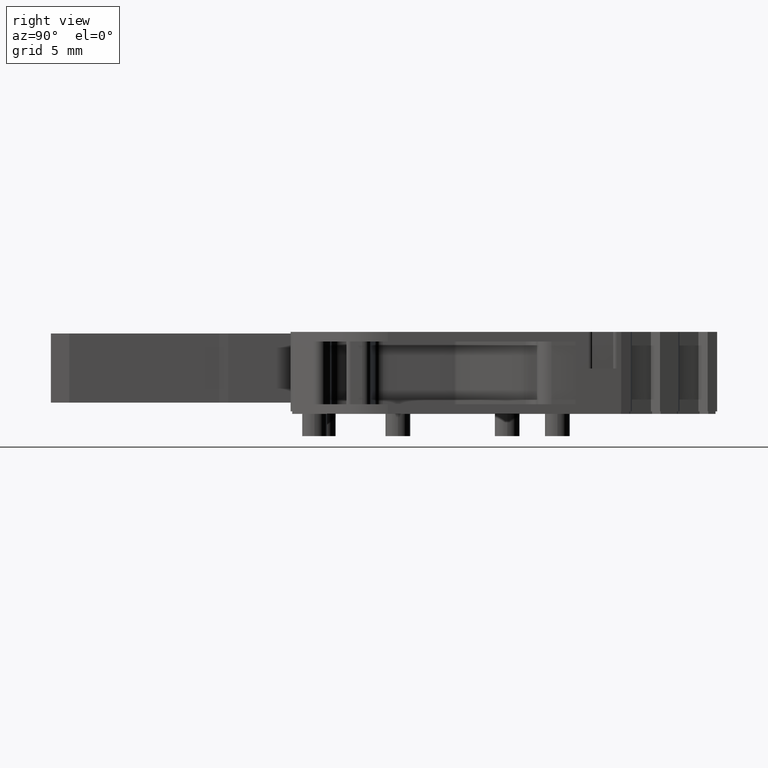
[diagram: clean part render]
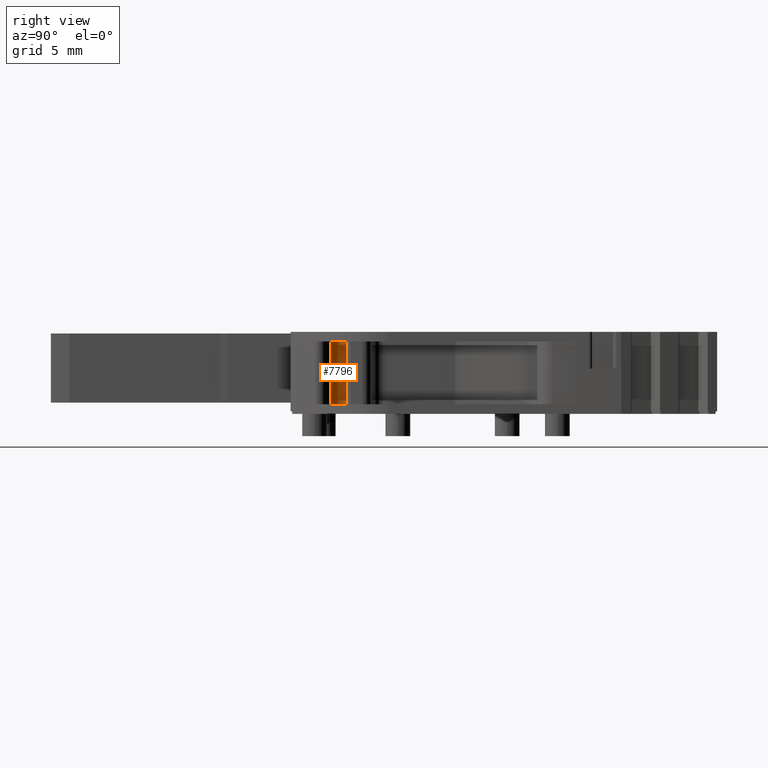
[diagram: same view with one face highlighted and labeled with its STEP entity id]
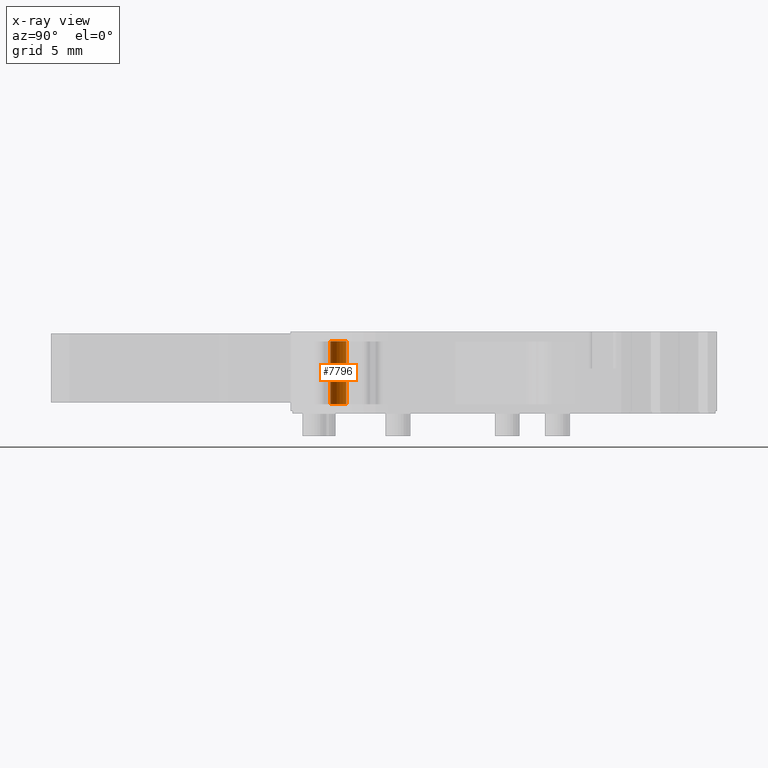
[diagram: x-ray of the same camera — body ghosted, the highlighted face saturated]
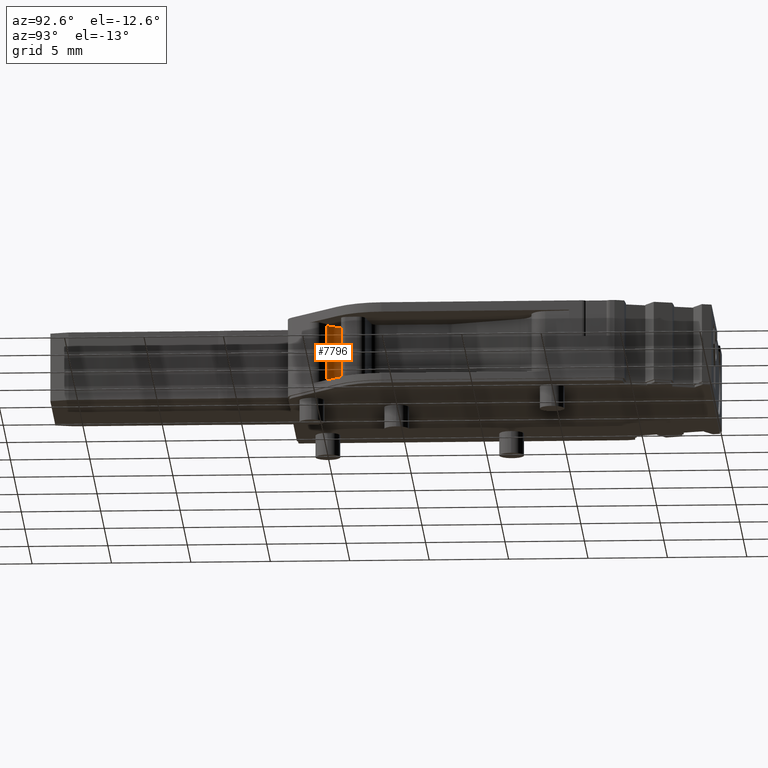
[diagram: same view with one face highlighted and labeled with its STEP entity id]
A machine part, right view. The second image highlights one B-rep face of the part: STEP entity #7796.
The next image is the same camera in x-ray: the body ghosted, the highlighted face saturated — about 0% of this face is hidden behind the body in this view.
A second angle (auxiliary view) of the same face is appended — the face is thin or edge-on in the first view.
In plain terms, the highlighted cylindrical surface (edge-blend (fillet) strip) has radius 1 mm, axis along (0, 0, -1).
Its self-contained STEP definition (entity closure, byte-faithful):
#3 = CIRCLE ( 'NONE', #54, 0.9999999999998689900 ) ;
#54 = AXIS2_PLACEMENT_3D ( 'NONE', #8955, #2813, #4175 ) ;
#198 = DIRECTION ( 'NONE',  ( 0.0000000000000000000, 0.0000000000000000000, -1.000000000000000000 ) ) ;
#207 = ORIENTED_EDGE ( 'NONE', *, *, #3768, .F. ) ;
#446 = DIRECTION ( 'NONE',  ( 0.0000000000000000000, 0.0000000000000000000, -1.000000000000000000 ) ) ;
#448 = EDGE_CURVE ( 'NONE', #6806, #1014, #3, .T. ) ;
#532 = ORIENTED_EDGE ( 'NONE', *, *, #448, .F. ) ;
#780 = CARTESIAN_POINT ( 'NONE',  ( -11.59572775112033600, 10.28893022263621000, -2.394148433129065900 ) ) ;
#839 = LINE ( 'NONE', #2277, #7961 ) ;
#937 = CARTESIAN_POINT ( 'NONE',  ( -11.59572775112038400, 10.28893022263621400, 1.555851566870936100 ) ) ;
#1010 = CARTESIAN_POINT ( 'NONE',  ( -12.53742557809231400, 11.28722920421435700, 1.555851566870936100 ) ) ;
#1014 = VERTEX_POINT ( 'NONE', #780 ) ;
#2260 = CIRCLE ( 'NONE', #6476, 0.9999999999998689900 ) ;
#2277 = CARTESIAN_POINT ( 'NONE',  ( -12.53742557809231400, 11.28722920421435700, 33.91356612307801300 ) ) ;
#2351 = ORIENTED_EDGE ( 'NONE', *, *, #4553, .F. ) ;
#2382 = VERTEX_POINT ( 'NONE', #937 ) ;
#2468 = VECTOR ( 'NONE', #7538, 1000.000000000000000 ) ;
#2813 = DIRECTION ( 'NONE',  ( -0.0000000000000000000, -0.0000000000000000000, 1.000000000000000000 ) ) ;
#3247 = DIRECTION ( 'NONE',  ( -1.000000000000000000, 0.0000000000000000000, 0.0000000000000000000 ) ) ;
#3312 = CYLINDRICAL_SURFACE ( 'NONE', #7610, 0.9999999999998689900 ) ;
#3560 = ORIENTED_EDGE ( 'NONE', *, *, #5257, .F. ) ;
#3768 = EDGE_CURVE ( 'NONE', #1014, #2382, #5404, .T. ) ;
#4175 = DIRECTION ( 'NONE',  ( -1.000000000000000000, 0.0000000000000000000, 0.0000000000000000000 ) ) ;
#4553 = EDGE_CURVE ( 'NONE', #2382, #5288, #2260, .T. ) ;
#4769 = CARTESIAN_POINT ( 'NONE',  ( -11.59572775112038400, 10.28893022263621400, 33.91356612307801300 ) ) ;
#5244 = EDGE_LOOP ( 'NONE', ( #3560, #2351, #207, #532 ) ) ;
#5257 = EDGE_CURVE ( 'NONE', #5288, #6806, #839, .T. ) ;
#5288 = VERTEX_POINT ( 'NONE', #1010 ) ;
#5404 = LINE ( 'NONE', #4769, #2468 ) ;
#6065 = CARTESIAN_POINT ( 'NONE',  ( -12.53742557809231400, 11.28722920421435700, -2.394148433129065900 ) ) ;
#6476 = AXIS2_PLACEMENT_3D ( 'NONE', #8208, #6926, #8232 ) ;
#6806 = VERTEX_POINT ( 'NONE', #6065 ) ;
#6879 = CARTESIAN_POINT ( 'NONE',  ( -11.53742557809244600, 11.28722920421435700, 33.91356612307801300 ) ) ;
#6926 = DIRECTION ( 'NONE',  ( -0.0000000000000000000, -0.0000000000000000000, -1.000000000000000000 ) ) ;
#6959 = FACE_OUTER_BOUND ( 'NONE', #5244, .T. ) ;
#7538 = DIRECTION ( 'NONE',  ( -0.0000000000000000000, -0.0000000000000000000, 1.000000000000000000 ) ) ;
#7610 = AXIS2_PLACEMENT_3D ( 'NONE', #6879, #446, #3247 ) ;
#7796 = ADVANCED_FACE ( 'NONE', ( #6959 ), #3312, .F. ) ;
#7961 = VECTOR ( 'NONE', #198, 1000.000000000000000 ) ;
#8208 = CARTESIAN_POINT ( 'NONE',  ( -11.53742557809244600, 11.28722920421435700, 1.555851566870936100 ) ) ;
#8232 = DIRECTION ( 'NONE',  ( 1.000000000000000000, -1.734723475977034300E-015, 0.0000000000000000000 ) ) ;
#8955 = CARTESIAN_POINT ( 'NONE',  ( -11.53742557809244600, 11.28722920421435700, -2.394148433129065900 ) ) ;